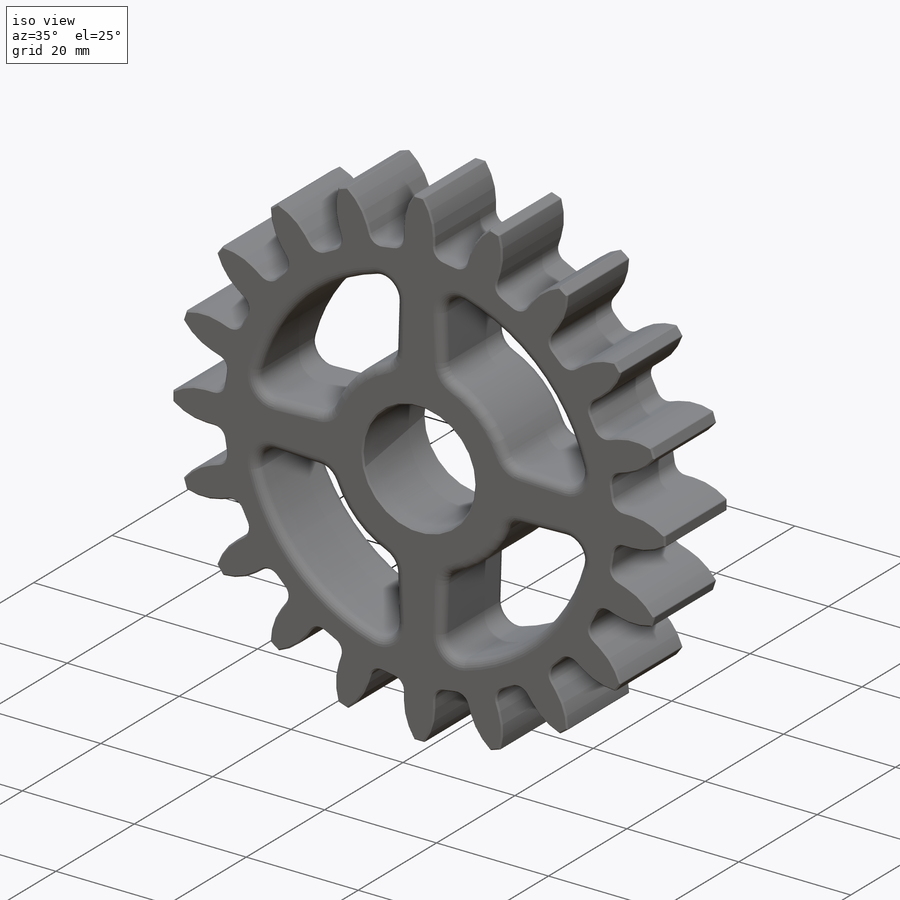
[diagram: iso view]
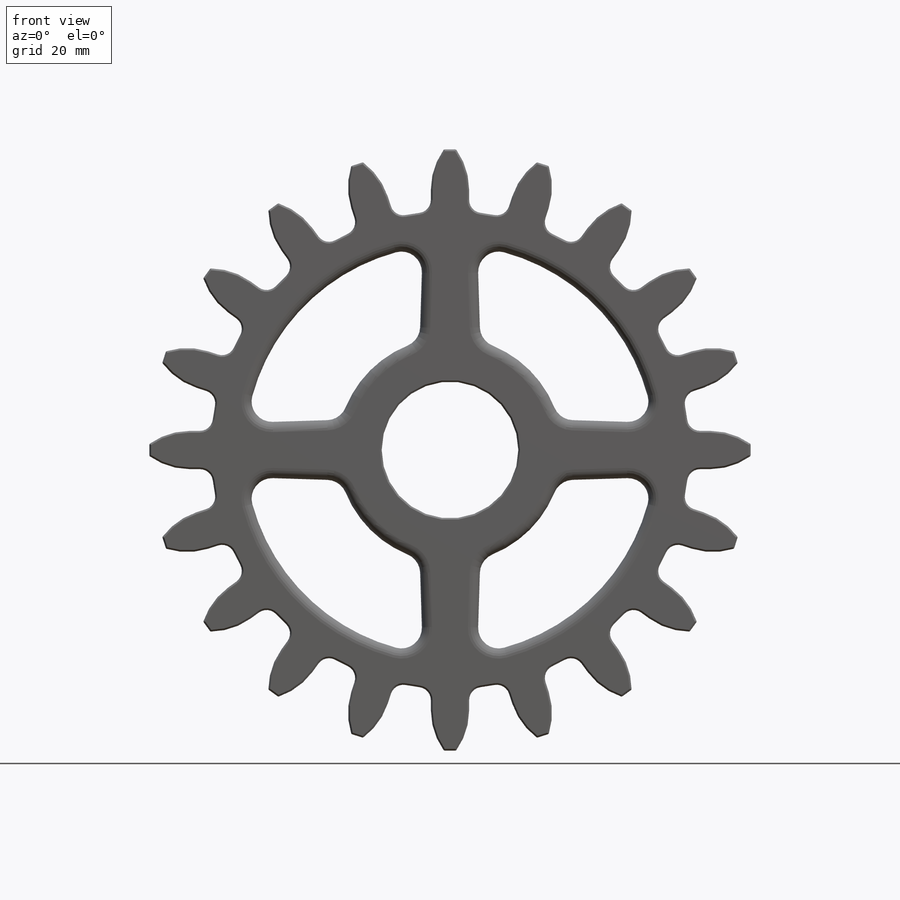
[diagram: front view]
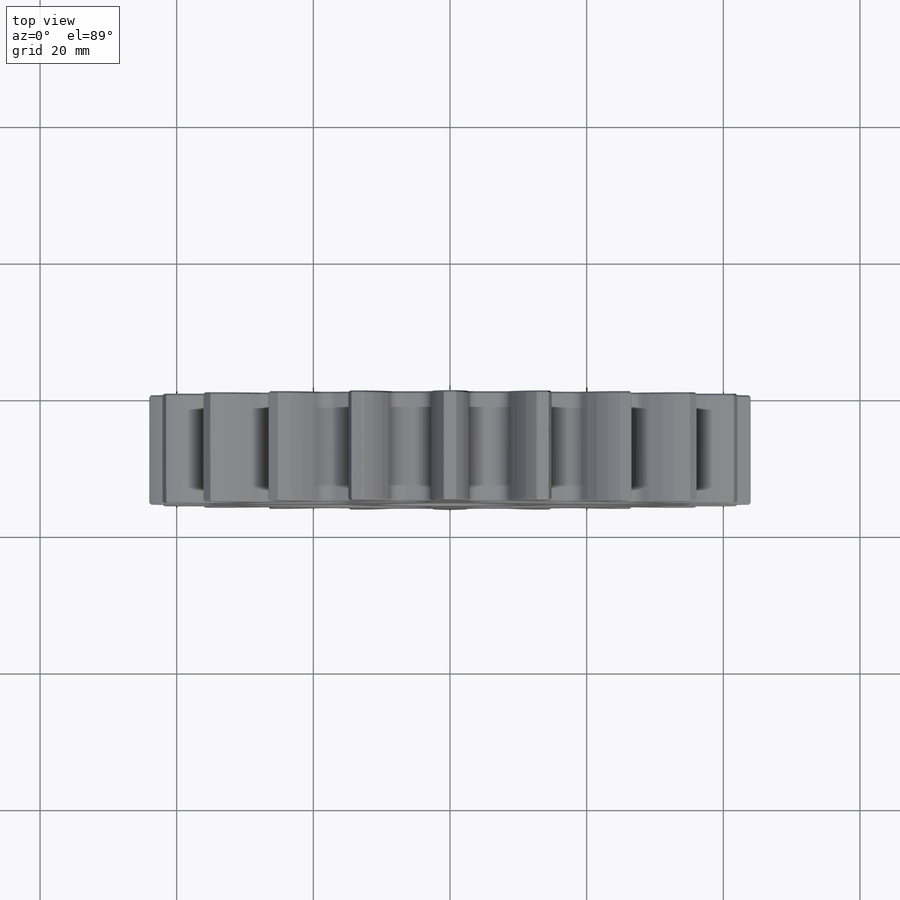
[diagram: top view]
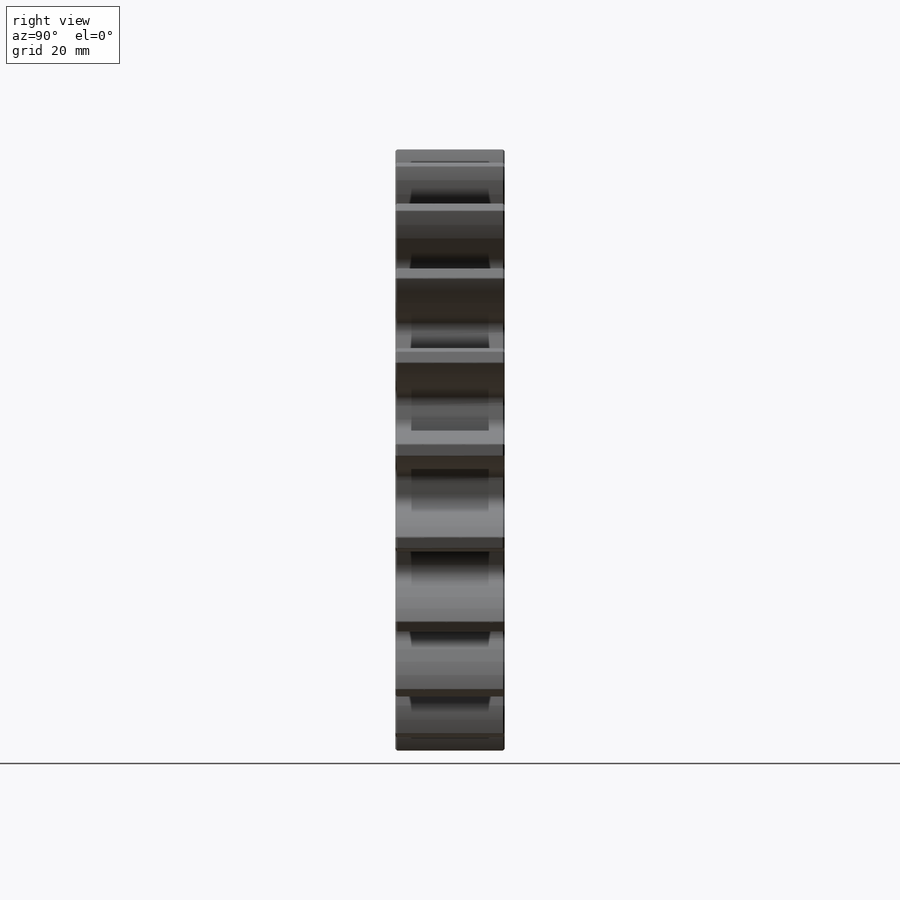
[diagram: right view]
SOLIDWORKS PART (.sldprt)
format: sldprt  version: not decoded by parser v0  size: 1,427,968 bytes
history: native  units: mm
features: plane x3, chamfer x2, material x1, sketch x1, extrude x1, fillet x1 (+13 scaffold rows collapsed)
feature tree (22):
  scaffold x13  (default folders/planes/origin — collapsed)
  material  "Дуб"
  plane  "Спереди"
  plane  "Сверху"
  plane  "Справа"
  sketch  "Эскиз1"  dims[c1.D1=20.0mm c1.D2=88.0mm c1.D3=70.0mm c1.D4=77.56mm c1.D6=20.0mm c1.D7=1.905mm c1.D9=33.0mm c1.D10=60.0mm c1.D14=3.0mm c1.D5=5.6mm c1.D11=~13.743135mm c2.D11=1.8deg c2.D12=~13.663784mm c3.D12=1.8deg c3.D13=4.0mm c3.D8=20.0 c3.D15=4.0]
  extrude  "Бобышка-Вытянуть1"  Depth=16mm
  fillet  "Скругление1"  Radius=1.5mm
  chamfer  "Фаска1"  Distance=0.25mm Angle=45deg
  chamfer  "Скругление2"  Distance=0.25mm
decode coverage: 5 of 5 modeling features carry decoded parameters
note: ~ marks probable driven/reference dimensions
note: suppression state not decoded; provenance and decode notes live in map.json
